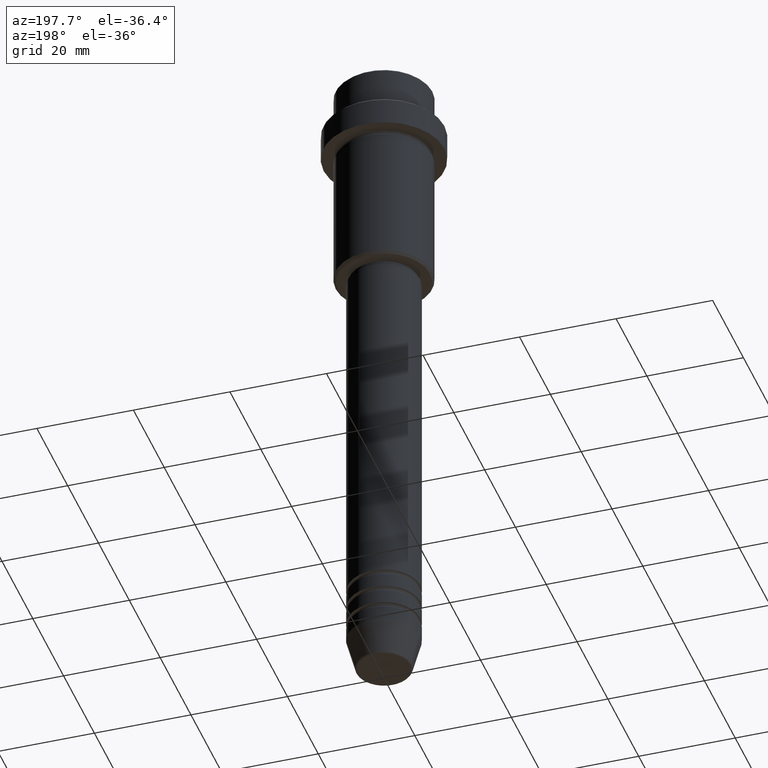
[diagram: clean part render]
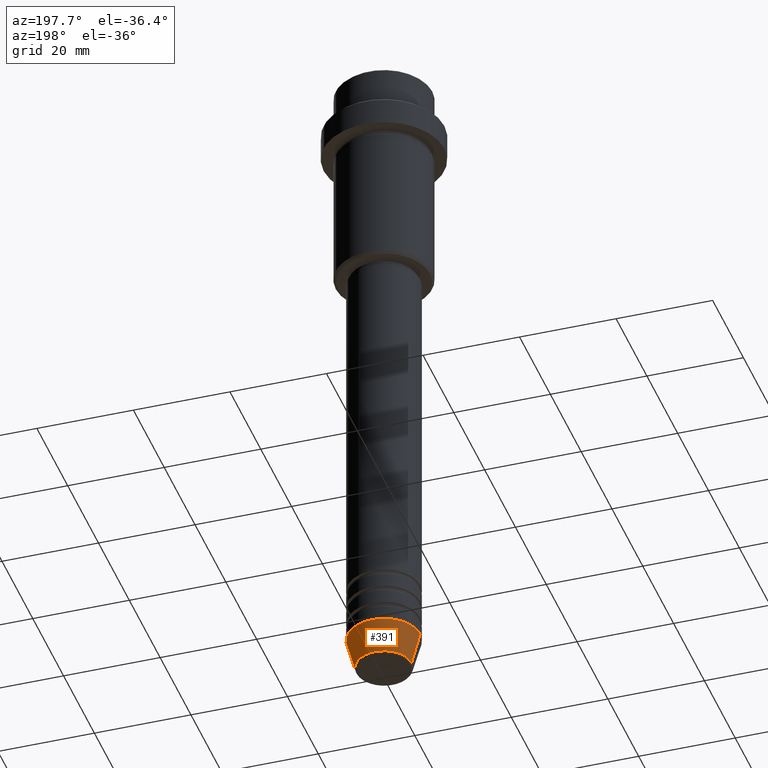
[diagram: same view with one face highlighted and labeled with its STEP entity id]
A machine part, auxiliary view. The second image highlights one B-rep face of the part: STEP entity #391.
In plain terms, the highlighted conical surface has half-angle 15 deg.
Its self-contained STEP definition (entity closure, byte-faithful):
#31 = CARTESIAN_POINT ( 'NONE',  ( -5.723655072137191269, 8.097153428560735915E-16, -139.6294095225512706 ) ) ;
#55 = CARTESIAN_POINT ( 'NONE',  ( -7.500000000000000000, 9.184850993605147944E-16, -133.0000000000000000 ) ) ;
#82 = LINE ( 'NONE', #1378, #176 ) ;
#86 = CARTESIAN_POINT ( 'NONE',  ( 5.723655072137191269, 0.000000000000000000, -139.6294095225512706 ) ) ;
#138 = VERTEX_POINT ( 'NONE', #31 ) ;
#176 = VECTOR ( 'NONE', #839, 1000.000000000000000 ) ;
#181 = VECTOR ( 'NONE', #347, 1000.000000000000000 ) ;
#196 = EDGE_CURVE ( 'NONE', #766, #321, #82, .T. ) ;
#230 = DIRECTION ( 'NONE',  ( 1.000000000000000000, 0.000000000000000000, 0.000000000000000000 ) ) ;
#271 = FACE_OUTER_BOUND ( 'NONE', #432, .T. ) ;
#305 = DIRECTION ( 'NONE',  ( -0.000000000000000000, -0.000000000000000000, 1.000000000000000000 ) ) ;
#321 = VERTEX_POINT ( 'NONE', #495 ) ;
#347 = DIRECTION ( 'NONE',  ( -0.2588190451025213501, 3.169619151431772337E-17, 0.9659258262890680902 ) ) ;
#357 = DIRECTION ( 'NONE',  ( -0.000000000000000000, -0.000000000000000000, 1.000000000000000000 ) ) ;
#391 = ADVANCED_FACE ( 'NONE', ( #271 ), #911, .T. ) ;
#405 = AXIS2_PLACEMENT_3D ( 'NONE', #558, #890, #1289 ) ;
#432 = EDGE_LOOP ( 'NONE', ( #527, #1417, #1396, #953 ) ) ;
#468 = EDGE_CURVE ( 'NONE', #766, #138, #772, .T. ) ;
#495 = CARTESIAN_POINT ( 'NONE',  ( 7.500000000000000000, 0.000000000000000000, -133.0000000000000000 ) ) ;
#527 = ORIENTED_EDGE ( 'NONE', *, *, #468, .T. ) ;
#558 = CARTESIAN_POINT ( 'NONE',  ( 0.000000000000000000, 0.000000000000000000, -139.6294095225512706 ) ) ;
#628 = DIRECTION ( 'NONE',  ( 1.000000000000000000, 0.000000000000000000, 0.000000000000000000 ) ) ;
#657 = AXIS2_PLACEMENT_3D ( 'NONE', #1039, #305, #628 ) ;
#756 = CIRCLE ( 'NONE', #1024, 7.500000000000000000 ) ;
#766 = VERTEX_POINT ( 'NONE', #86 ) ;
#772 = CIRCLE ( 'NONE', #405, 5.723655072137191269 ) ;
#839 = DIRECTION ( 'NONE',  ( 0.2588190451025213501, 0.000000000000000000, 0.9659258262890680902 ) ) ;
#890 = DIRECTION ( 'NONE',  ( -0.000000000000000000, -0.000000000000000000, 1.000000000000000000 ) ) ;
#911 = CONICAL_SURFACE ( 'NONE', #657, 7.500000000000000000, 0.2617993877991500740 ) ;
#953 = ORIENTED_EDGE ( 'NONE', *, *, #196, .F. ) ;
#992 = EDGE_CURVE ( 'NONE', #321, #1334, #756, .T. ) ;
#1019 = LINE ( 'NONE', #1103, #181 ) ;
#1024 = AXIS2_PLACEMENT_3D ( 'NONE', #1331, #357, #230 ) ;
#1039 = CARTESIAN_POINT ( 'NONE',  ( 0.000000000000000000, 0.000000000000000000, -133.0000000000000000 ) ) ;
#1095 = EDGE_CURVE ( 'NONE', #138, #1334, #1019, .T. ) ;
#1103 = CARTESIAN_POINT ( 'NONE',  ( -7.500000000000000000, 9.184850993605147944E-16, -133.0000000000000000 ) ) ;
#1289 = DIRECTION ( 'NONE',  ( 1.000000000000000000, 0.000000000000000000, 0.000000000000000000 ) ) ;
#1331 = CARTESIAN_POINT ( 'NONE',  ( 0.000000000000000000, 0.000000000000000000, -133.0000000000000000 ) ) ;
#1334 = VERTEX_POINT ( 'NONE', #55 ) ;
#1378 = CARTESIAN_POINT ( 'NONE',  ( 7.500000000000000000, 0.000000000000000000, -133.0000000000000000 ) ) ;
#1396 = ORIENTED_EDGE ( 'NONE', *, *, #992, .F. ) ;
#1417 = ORIENTED_EDGE ( 'NONE', *, *, #1095, .T. ) ;